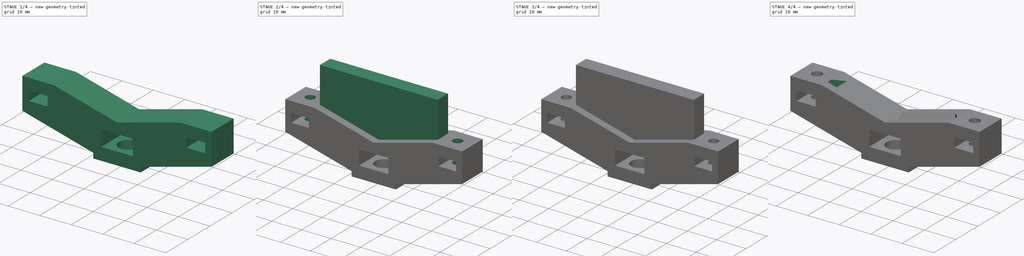
[diagram: build sequence overview — one tinted view per stage of 4, left to right]
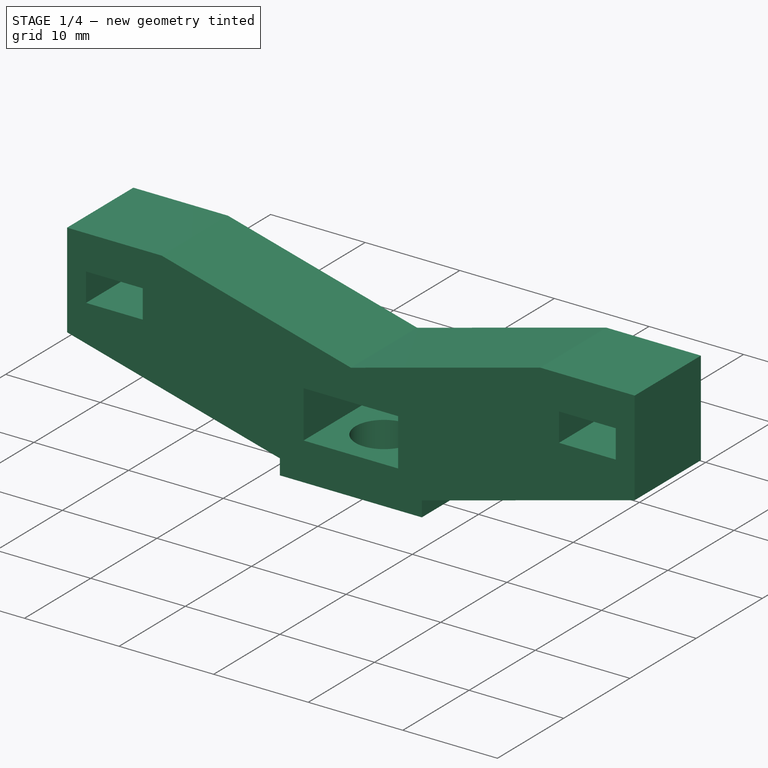
[diagram: stage 1 of 4 — iso view after this stage's code; geometry added in this stage tinted green]
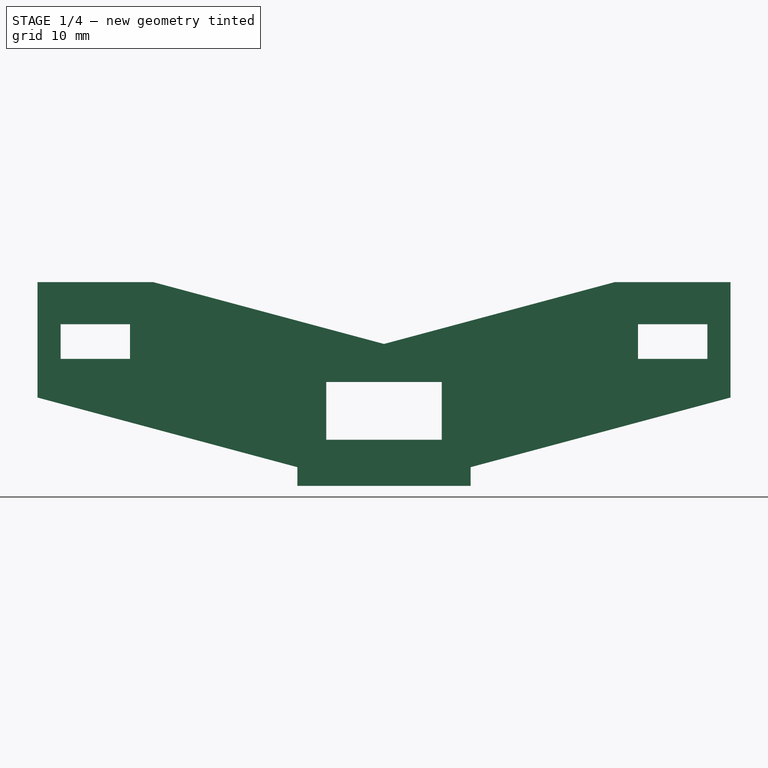
[diagram: stage 1 of 4 — front view after this stage's code; geometry added in this stage tinted green]
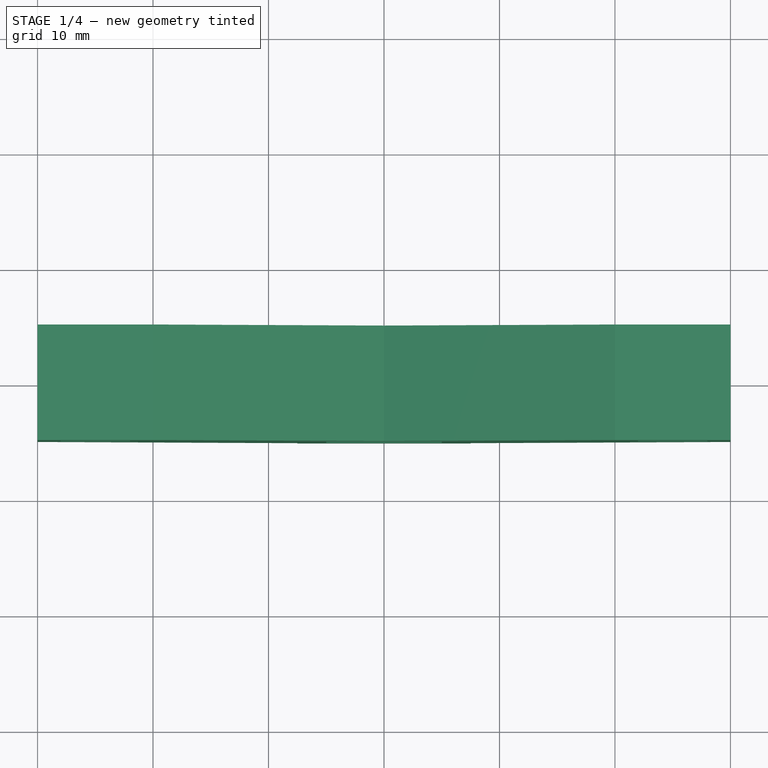
[diagram: stage 1 of 4 — top view after this stage's code; geometry added in this stage tinted green]
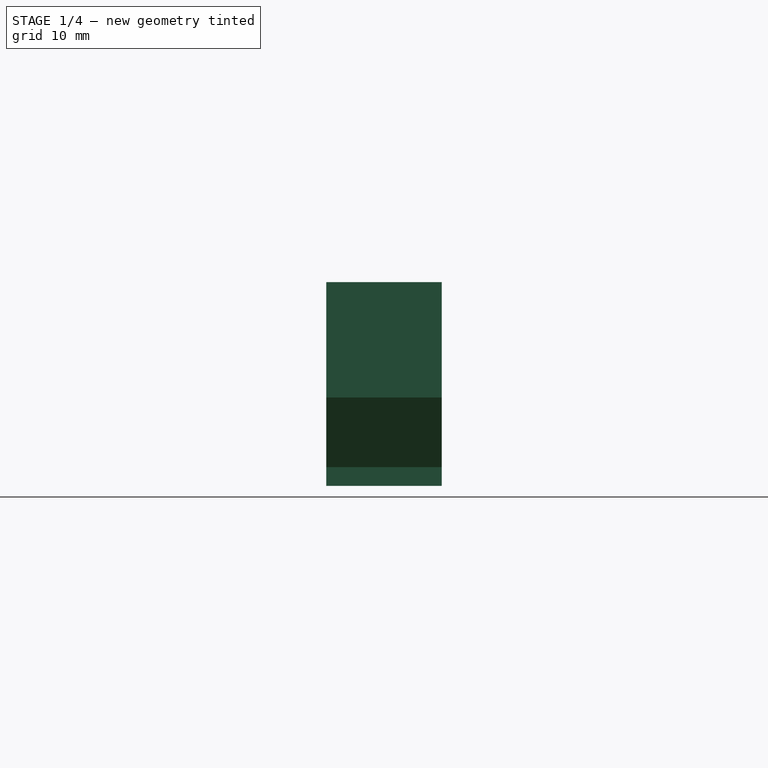
[diagram: stage 1 of 4 — right view after this stage's code; geometry added in this stage tinted green]
FCSTD DOCUMENT  (FreeCAD 0.20R29410 (Git))
Label: LensHolder
License: All rights reserved
LicenseURL: http://en.wikipedia.org/wiki/All_rights_reserved
objects: Sketcher::SketchObject×6, PartDesign::Chamfer×4, PartDesign::Pocket×4, PartDesign::Pad×2, PartDesign::Body×2, PartDesign::Boolean×1
note: 29 computed .brp shape members not serialized (recipe doc carries the construction recipe); baked Part::Feature solids carry a one-line shape summary decoded from their .brp

FEATURE [PartDesign::Body] Body001
  Group = -> [Sketch004,Pad001,Chamfer,Chamfer001,Chamfer002,Chamfer003]
  Origin = -> Origin001
  Tip = -> Chamfer003
FEATURE [PartDesign::Pad] Pad
  Direction = (0,-1,2e-16)
  Length = 10
  Length2 = 10
  Midplane = true
  Placement = pos=(0,0,0) rot=(1,0,0;1.5708rad)
  Profile = -> Sketch
  ReferenceAxis = -> Sketch [N_Axis]
  Refine = true
  Type = 0
FEATURE [PartDesign::Pocket] Pocket
  BaseFeature = -> Pad
  Direction = (0,1,2e-16)
  Length = 5
  Length2 = 5
  Midplane = true
  Placement = pos=(0,0,0) rot=(1,0,0;1.5708rad)
  Profile = -> Sketch002
  ReferenceAxis = -> Sketch002 [N_Axis]
  Refine = true
  Type = 1
FEATURE [PartDesign::Pocket] Pocket001
  BaseFeature = -> Pocket
  Direction = (0,0,-1)
  Length = 6
  Length2 = 5
  Placement = pos=(0,0,0) rot=(1,0,0;1.5708rad)
  Profile = -> Sketch003
  ReferenceAxis = -> Sketch003 [N_Axis]
  Refine = true
  Reversed = true
  Type = 0
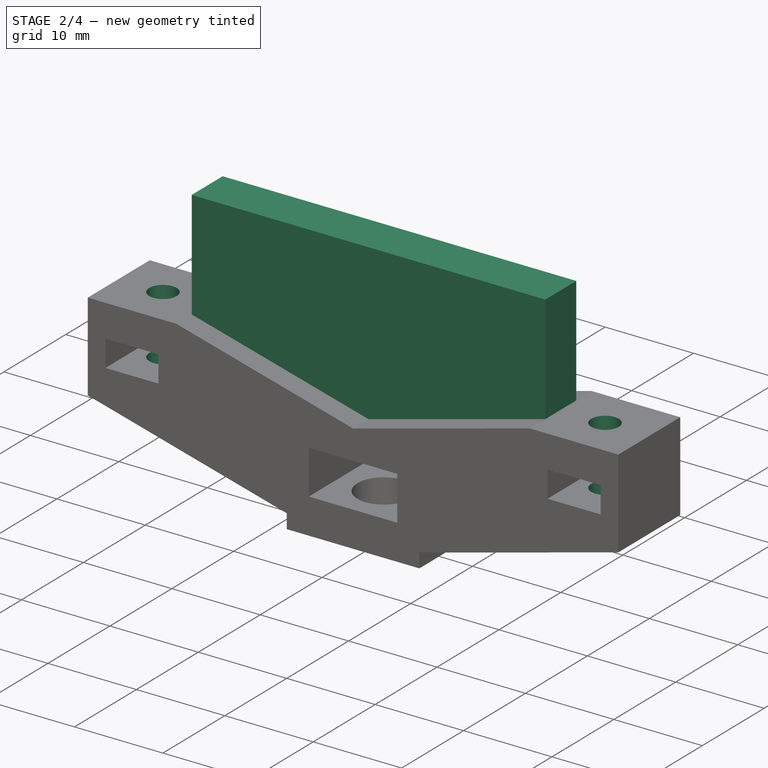
[diagram: stage 2 of 4 — iso view after this stage's code; geometry added in this stage tinted green]
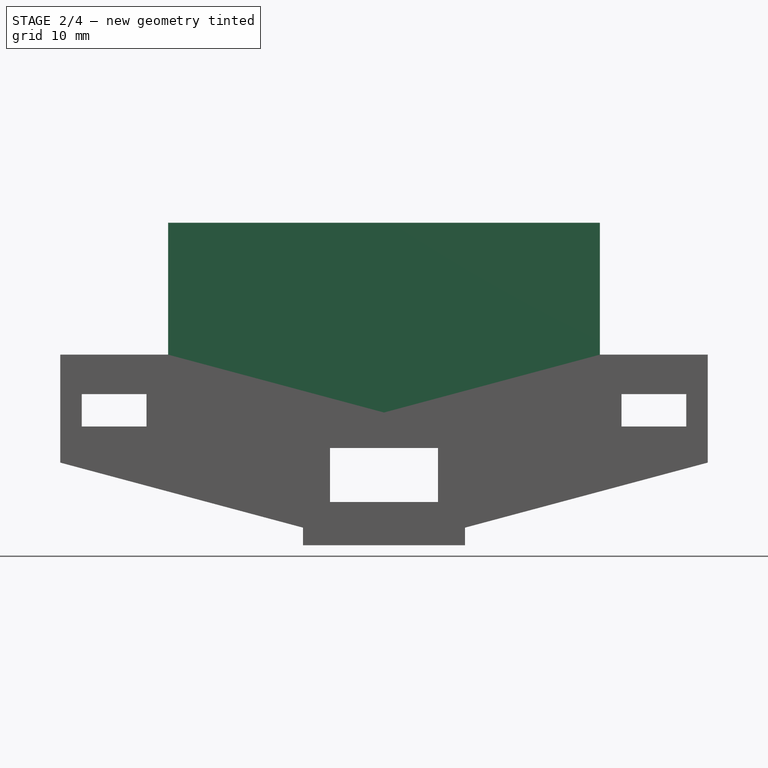
[diagram: stage 2 of 4 — front view after this stage's code; geometry added in this stage tinted green]
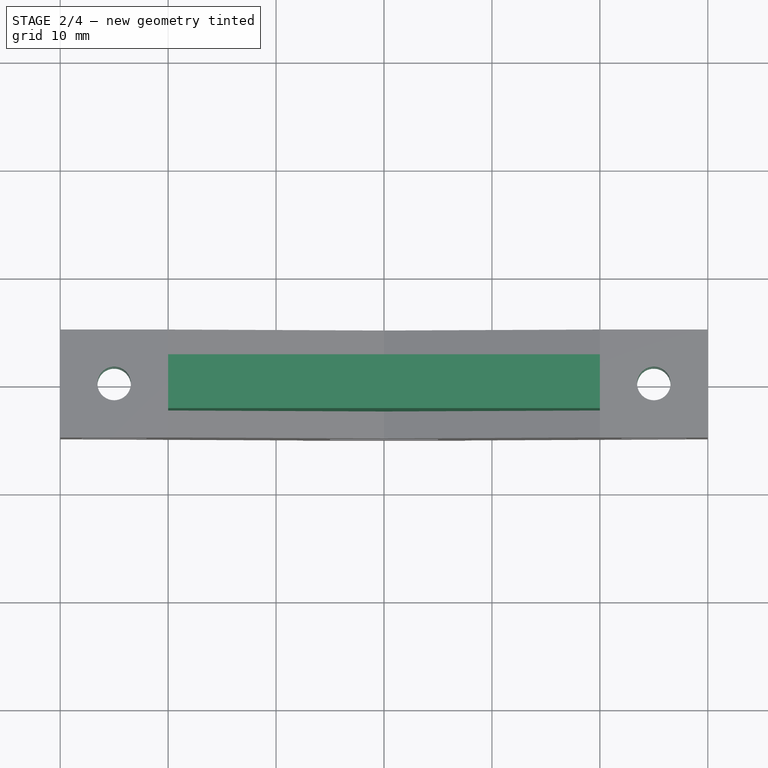
[diagram: stage 2 of 4 — top view after this stage's code; geometry added in this stage tinted green]
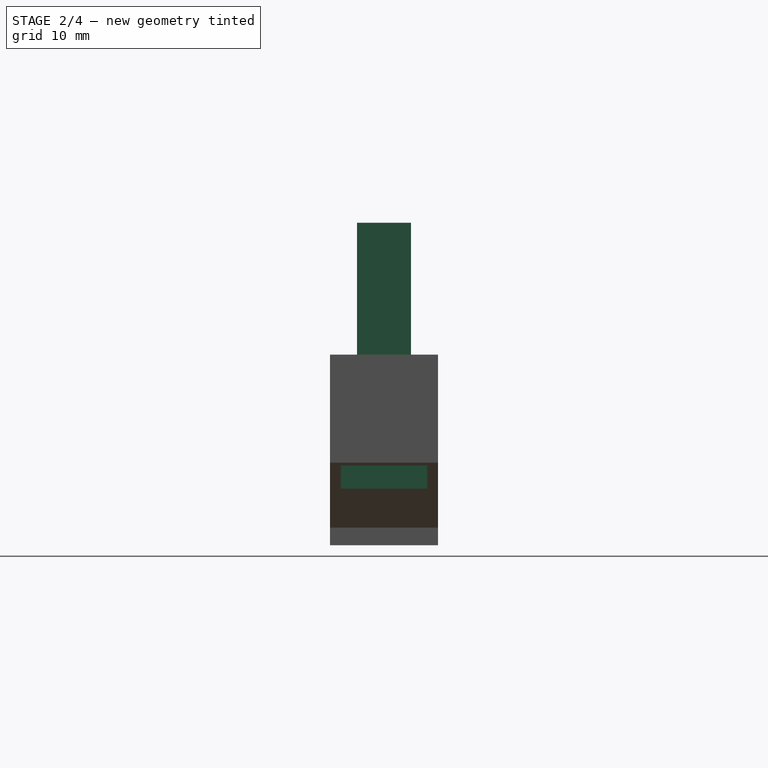
[diagram: stage 2 of 4 — right view after this stage's code; geometry added in this stage tinted green]
FEATURE [Sketcher::SketchObject] Sketch
  FullyConstrained = true
  MapMode = 5
  Placement = pos=(0,0,0) rot=(1,0,0;1.5708rad)
  sketch-geometry (13):
    g0: GeomPoint X=0 Y=33 Z=0
    g1: LineSegment StartX=-30 StartY=17.6535 StartZ=0 EndX=-20 EndY=17.6535 EndZ=0
    g2: LineSegment StartX=-20 StartY=17.6535 StartZ=0 EndX=0 EndY=12.2945 EndZ=0
    g3: LineSegment StartX=0 StartY=12.2945 StartZ=0 EndX=20 EndY=17.6535 EndZ=0
    g4: LineSegment StartX=20 StartY=17.6535 StartZ=0 EndX=30 EndY=17.6535 EndZ=0
    g5: Circle CenterX=0 CenterY=33 CenterZ=0 NormalX=0 NormalY=0 NormalZ=1 AngleXU=0 Radius=20
    g6: LineSegment StartX=-7.5 StartY=1.6246 StartZ=0 EndX=-30 EndY=7.65346 EndZ=0
    g7: LineSegment StartX=-30 StartY=7.65346 StartZ=0 EndX=-30 EndY=17.6535 EndZ=0
    g8: LineSegment StartX=7.5 StartY=1.6246 StartZ=0 EndX=30 EndY=7.65346 EndZ=0
    g9: LineSegment StartX=30 StartY=7.65346 StartZ=0 EndX=30 EndY=17.6535 EndZ=0
    g10: LineSegment StartX=7.5 StartY=1.6246 StartZ=0 EndX=7.5 EndY=0 EndZ=0
    g11: LineSegment StartX=-7.5 StartY=1.6246 StartZ=0 EndX=-7.5 EndY=0 EndZ=0
    g12: LineSegment StartX=-7.5 StartY=0 StartZ=0 EndX=7.5 EndY=0 EndZ=0
  constraints (34):
    c: PointOnObject(g0,g-2)
    c: DistanceY(g-1,g0) = 33
    c: Horizontal(g1,g4)
    c: Horizontal(g1)
    c: Coincident(g1,g2)
    c: Coincident(g2,g3)
    c: Coincident(g3,g4)
    c: Coincident(g5,g0)
    c: Diameter(g5) = 40  'Lens'
    c: PointOnObject(g2,g-2)
    c: Tangent(g3,g5)
    c: DistanceX(g1,g3) = 40
    c: Angle(g3,g2) = 2.61799
    c: Symmetric(g3,g1,g-2)
    c: Coincident(g6,g7)
    c: Coincident(g7,g1)
    c: Coincident(g8,g9)
    c: Coincident(g9,g4)
    c: Vertical(g9)
    c: Vertical(g7)
    c: Symmetric(g8,g6,g-2)
    c: Distance(g9) = 10
    c: Parallel(g3,g8)
    c: Symmetric(g8,g6,g-2)
    c: Distance(g4) = 10
    c: Coincident(g10,g8)
    c: PointOnObject(g10,g-1)
    c: Vertical(g10)
    c: Coincident(g11,g6)
    c: PointOnObject(g11,g-1)
    c: Vertical(g11)
    c: Coincident(g12,g11)
    c: Coincident(g12,g10)
    c: Distance(g12) = 15
FEATURE [Sketcher::SketchObject] Sketch003  label="SketchBottomHoles"
  FullyConstrained = true
  MapMode = 5
  Support = -> [XY_Plane]
  sketch-geometry (2):
    g0: LineSegment StartX=-3.64842e-11 StartY=0 StartZ=0 EndX=8.6236e-12 EndY=0 EndZ=0
    g1: Circle CenterX=8.6236e-12 CenterY=0 CenterZ=0 NormalX=0 NormalY=0 NormalZ=1 AngleXU=0 Radius=3
  constraints (4):
    c: Symmetric(g0,g0,g-2)
    c: Coincident(g1,g0)
    c: Diameter(g1) = 6
    c: Coincident(g1,g-1)
FEATURE [Sketcher::SketchObject] Sketch002  label="SketchNutCapture"
  FullyConstrained = true
  MapMode = 5
  Placement = pos=(0,0,0) rot=(1,0,0;1.5708rad)
  Support = -> [XZ_Plane]
  sketch-geometry (17):
    g0: LineSegment StartX=-5 StartY=9 StartZ=0 EndX=5 EndY=9 EndZ=0
    g1: LineSegment StartX=5 StartY=9 StartZ=0 EndX=5 EndY=4 EndZ=0
    g2: LineSegment StartX=5 StartY=4 StartZ=0 EndX=-5 EndY=4 EndZ=0
    g3: LineSegment StartX=-5 StartY=4 StartZ=0 EndX=-5 EndY=9 EndZ=0
    g4: LineSegment StartX=-12.5 StartY=-5.08223 StartZ=0 EndX=12.5 EndY=-5.08223 EndZ=0
    g5: LineSegment StartX=12.5 StartY=-2.61907 StartZ=0 EndX=12.5 EndY=-16.2522 EndZ=0
    g6: LineSegment StartX=-12.5 StartY=-2.55511 StartZ=0 EndX=-12.5 EndY=-17.2223 EndZ=0
    g7: LineSegment StartX=-28 StartY=14 StartZ=0 EndX=-22 EndY=14 EndZ=0
    g8: LineSegment StartX=-22 StartY=14 StartZ=0 EndX=-22 EndY=11 EndZ=0
    g9: LineSegment StartX=-22 StartY=11 StartZ=0 EndX=-28 EndY=11 EndZ=0
    g10: LineSegment StartX=-28 StartY=11 StartZ=0 EndX=-28 EndY=14 EndZ=0
    g11: LineSegment StartX=22 StartY=14 StartZ=0 EndX=28 EndY=14 EndZ=0
    g12: LineSegment StartX=28 StartY=14 StartZ=0 EndX=28 EndY=11 EndZ=0
    g13: LineSegment StartX=28 StartY=11 StartZ=0 EndX=22 EndY=11 EndZ=0
    g14: LineSegment StartX=22 StartY=11 StartZ=0 EndX=22 EndY=14 EndZ=0
    g15: LineSegment StartX=-25 StartY=-3.61053 StartZ=0 EndX=25 EndY=-3.61053 EndZ=0
    g16: LineSegment StartX=-35 StartY=-1.87304 StartZ=0 EndX=35 EndY=-1.87304 EndZ=0
  constraints (44):
    c: Coincident(g0,g1)
    c: Coincident(g2,g3)
    c: Coincident(g3,g0)
    c: Horizontal(g0)
    c: Vertical(g1)
    c: Vertical(g3)
    c: PointOnObject(g4,g6)
    c: DistanceX(g2,g2) = 10
    c: DistanceY(g1,g1) = 5
    c: Block(g6)
    c: Block(g5)
    c: Block(g4)
    c: DistanceY(g-1,g1) = 4
    c: Coincident(g7,g8)
    c: Coincident(g8,g9)
    c: Coincident(g9,g10)
    c: Coincident(g10,g7)
    c: Horizontal(g7)
    c: Horizontal(g9)
    c: Vertical(g8)
    c: Vertical(g10)
    c: Coincident(g11,g12)
    c: Coincident(g12,g13)
    c: Coincident(g13,g14)
    c: Coincident(g14,g11)
    c: Horizontal(g11)
    c: Horizontal(g13)
    c: Vertical(g12)
    c: Vertical(g14)
    c: Distance(g13) = 6
    c: Distance(g15) = 50
    c: Symmetric(g15,g15,g-2)
    c: Equal(g11,g7)
    c: Equal(g14,g8)
    c: Distance(g16) = 70
    c: Symmetric(g16,g16,g-2)
    c: Symmetric(g11,g7,g-2)
    c: Block(g16)
    c: Block(g15)
    c: Coincident(g2,g1)
    c: Symmetric(g2,g1,g-2)
    c: DistanceX(g-1,g11) = 22
    c: DistanceY(g-1,g13) = 11
    c: Distance(g11,g12) = 3
FEATURE [Sketcher::SketchObject] Sketch004
  FullyConstrained = true
  MapMode = 5
  Placement = pos=(0,0,0) rot=(1,0,0;1.5708rad)
  Support = -> [XZ_Plane001]
  sketch-geometry (5):
    g0: LineSegment StartX=-20 StartY=14.559 StartZ=0 EndX=0 EndY=9.2 EndZ=0
    g1: LineSegment StartX=0 StartY=9.2 StartZ=0 EndX=20 EndY=14.559 EndZ=0
    g2: LineSegment StartX=20 StartY=14.559 StartZ=0 EndX=20 EndY=29.869 EndZ=0
    g3: LineSegment StartX=20 StartY=29.869 StartZ=0 EndX=-20 EndY=29.869 EndZ=0
    g4: LineSegment StartX=-20 StartY=29.869 StartZ=0 EndX=-20 EndY=14.559 EndZ=0
  constraints (14):
    c: Coincident(g0,g1)
    c: Coincident(g1,g2)
    c: Vertical(g2)
    c: Coincident(g2,g3)
    c: Horizontal(g3)
    c: Coincident(g3,g4)
    c: Coincident(g4,g0)
    c: Vertical(g4)
    c: Angle(g1,g0) = 2.61799
    c: Symmetric(g1,g0,g-2)
    c: PointOnObject(g0,g-2)
    c: DistanceX(g3,g2) = 40
    c: DistanceY(g-1,g0) = 9.2
    c: DistanceY(g2,g2) = 15.31
FEATURE [PartDesign::Pad] Pad001
  Direction = (0,-1,-2e-16)
  Length = 5
  Length2 = 10
  Midplane = true
  Placement = pos=(0,0,0) rot=(1,0,0;1.5708rad)
  Profile = -> Sketch004
  ReferenceAxis = -> Sketch004 [N_Axis]
  Refine = true
  Type = 0
FEATURE [Sketcher::SketchObject] Sketch005
  FullyConstrained = true
  MapMode = 5
  Support = -> [XY_Plane]
  sketch-geometry (2):
    g0: Circle CenterX=-25 CenterY=0 CenterZ=0 NormalX=0 NormalY=0 NormalZ=1 AngleXU=0 Radius=1.55
    g1: Circle CenterX=25 CenterY=0 CenterZ=0 NormalX=0 NormalY=0 NormalZ=1 AngleXU=0 Radius=1.55
  constraints (5):
    c: PointOnObject(g0,g-1)
    c: Equal(g0,g1)
    c: Diameter(g1) = 3.1
    c: Symmetric(g1,g0,g-2)
    c: Distance(g-1,g1) = 25
FEATURE [PartDesign::Pocket] Pocket002
  BaseFeature = -> Pocket001
  Direction = (0,0,1)
  Length = 5
  Length2 = 5
  Placement = pos=(0,0,0) rot=(1,0,0;1.5708rad)
  Profile = -> Sketch005
  ReferenceAxis = -> Sketch005 [N_Axis]
  Refine = true
  Type = 1
  UseCustomVector = true
FEATURE [Sketcher::SketchObject] Sketch006
  FullyConstrained = true
  MapMode = 5
  sketch-geometry (9):
    g0: LineSegment StartX=-29 StartY=4 StartZ=0 EndX=-21 EndY=4 EndZ=0
    g1: LineSegment StartX=-21 StartY=4 StartZ=0 EndX=-21 EndY=-4 EndZ=0
    g2: LineSegment StartX=-21 StartY=-4 StartZ=0 EndX=-29 EndY=-4 EndZ=0
    g3: LineSegment StartX=-29 StartY=-4 StartZ=0 EndX=-29 EndY=4 EndZ=0
    g4: LineSegment StartX=21 StartY=4 StartZ=0 EndX=29 EndY=4 EndZ=0
    g5: LineSegment StartX=29 StartY=4 StartZ=0 EndX=29 EndY=-4 EndZ=0
    g6: LineSegment StartX=29 StartY=-4 StartZ=0 EndX=21 EndY=-4 EndZ=0
    g7: LineSegment StartX=21 StartY=-4 StartZ=0 EndX=21 EndY=4 EndZ=0
    g8: LineSegment StartX=25 StartY=21.0052 StartZ=0 EndX=25 EndY=-24.1672 EndZ=0
  constraints (24):
    c: Coincident(g0,g1)
    c: Coincident(g1,g2)
    c: Coincident(g2,g3)
    c: Coincident(g3,g0)
    c: Horizontal(g0)
    c: Horizontal(g2)
    c: Vertical(g1)
    c: Vertical(g3)
    c: Coincident(g4,g5)
    c: Coincident(g5,g6)
    c: Coincident(g6,g7)
    c: Coincident(g7,g4)
    c: Horizontal(g4)
    c: Horizontal(g6)
    c: Vertical(g7)
    c: DistanceX(g-1,g8) = 25
    c: Distance(g5) = 8
    c: Distance(g6) = 8
    c: Symmetric(g4,g4,g8)
    c: Symmetric(g4,g5,g-1)
    c: Equal(g6,g2)
    c: Equal(g1,g5)
    c: Symmetric(g6,g1,g-2)
    c: Block(g8)
FEATURE [PartDesign::Pocket] Pocket003
  BaseFeature = -> Pocket002
  Direction = (0,0,1)
  Length = 7.4
  Length2 = 5
  Placement = pos=(0,0,0) rot=(1,0,0;1.5708rad)
  Profile = -> Sketch006
  ReferenceAxis = -> Sketch006 [N_Axis]
  Refine = true
  Type = 0
  UseCustomVector = true
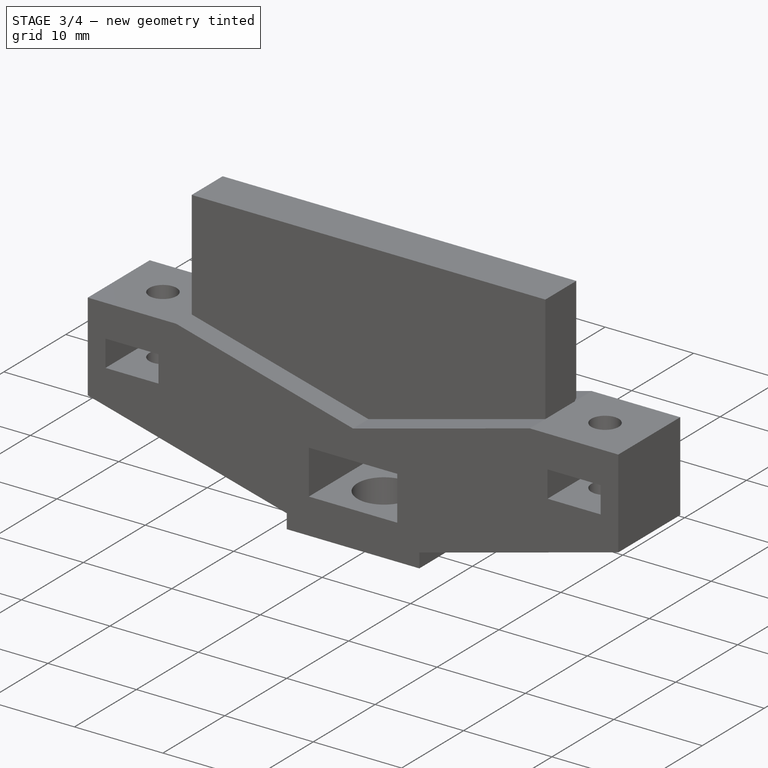
[diagram: stage 3 of 4 — iso view after this stage's code; geometry added in this stage tinted green]
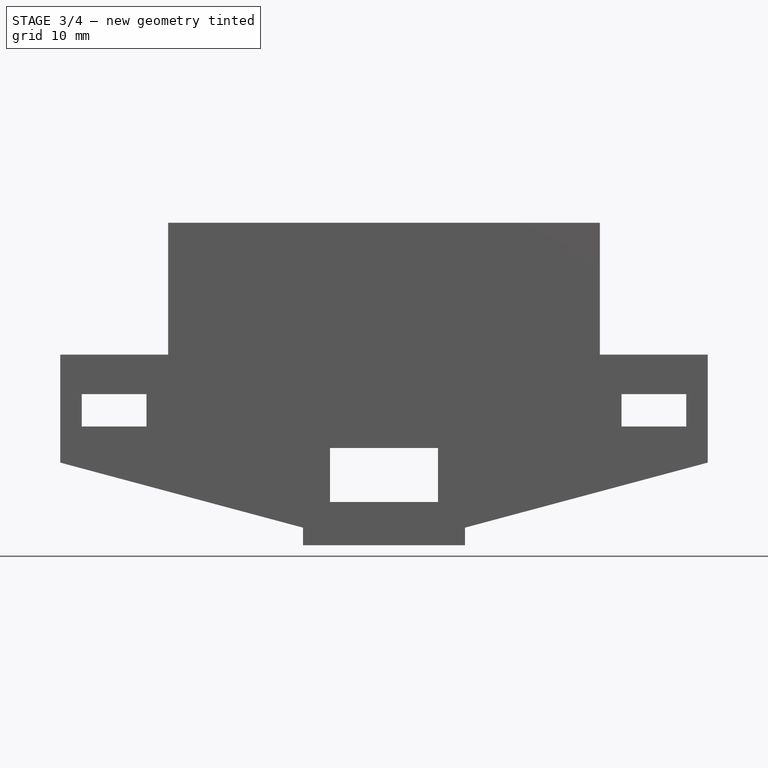
[diagram: stage 3 of 4 — front view after this stage's code; geometry added in this stage tinted green]
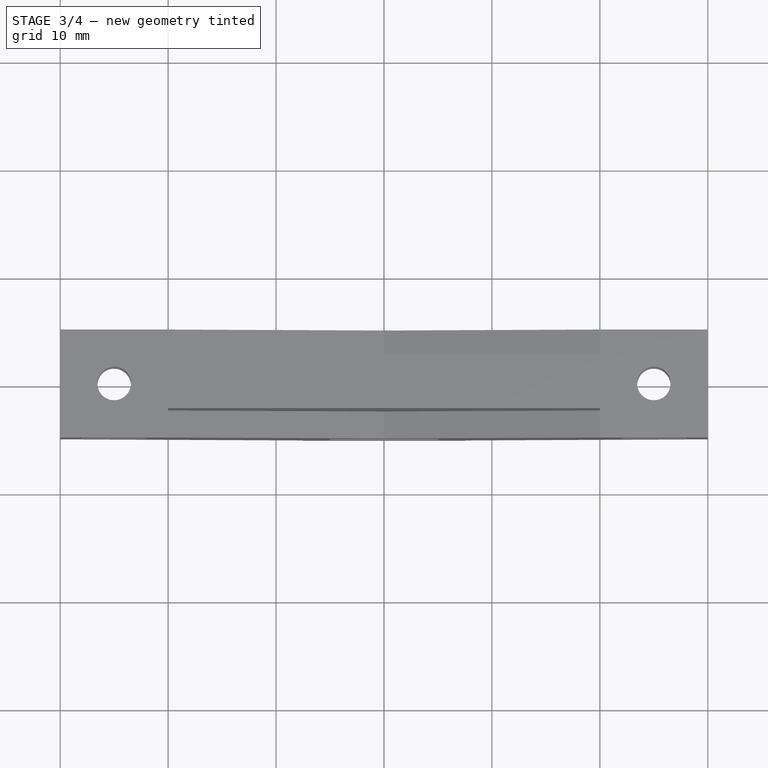
[diagram: stage 3 of 4 — top view after this stage's code; geometry added in this stage tinted green]
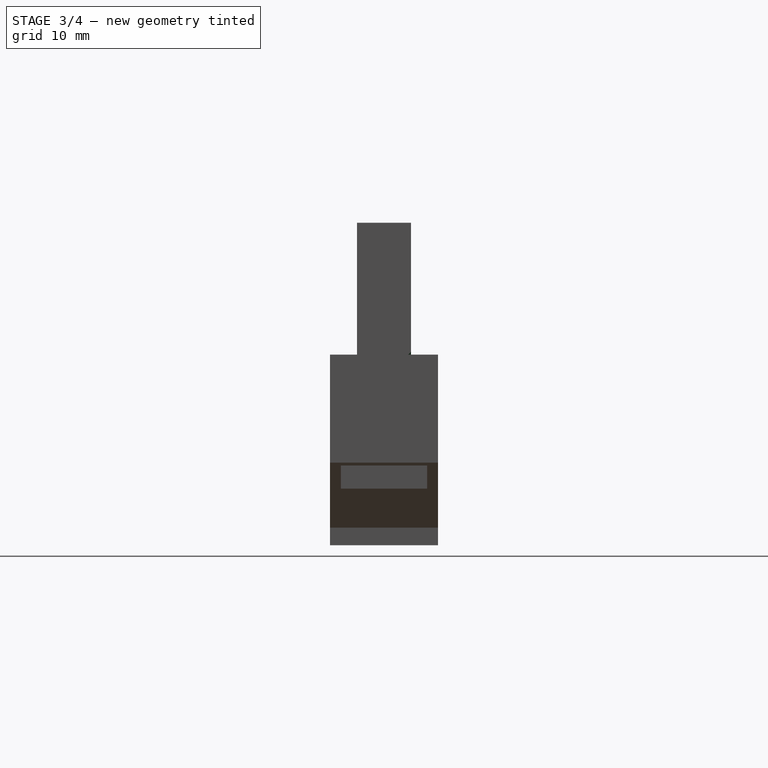
[diagram: stage 3 of 4 — right view after this stage's code; geometry added in this stage tinted green]
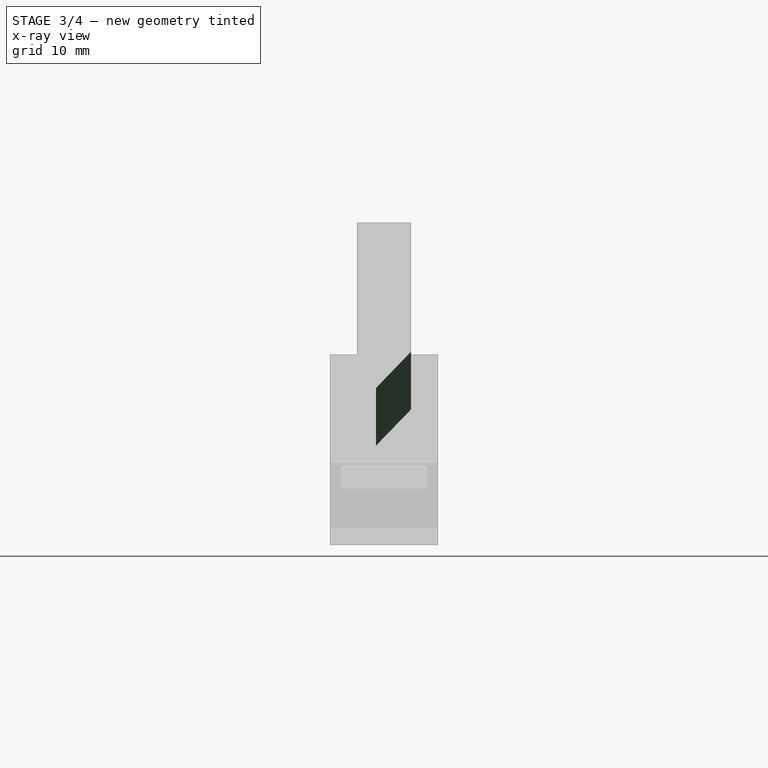
[diagram: stage 3 of 4 — x-ray composite at the right view; earlier geometry ghosted, this stage's added geometry solid]
FEATURE [PartDesign::Chamfer] Chamfer
  Angle = 45
  Base = -> Pad001 [Edge6]
  BaseFeature = -> Pad001
  ChamferType = 0
  FlipDirection = false
  Placement = pos=(0,0,0) rot=(1,0,0;1.5708rad)
  Refine = true
  Size = 3.25
  Size2 = 1
  SupportTransform = false
  UseAllEdges = false
FEATURE [PartDesign::Chamfer] Chamfer001
  Angle = 45
  Base = -> Chamfer [Edge4]
  BaseFeature = -> Chamfer
  ChamferType = 0
  FlipDirection = false
  Placement = pos=(0,0,0) rot=(1,0,0;1.5708rad)
  Refine = true
  Size = 3.25
  Size2 = 1
  SupportTransform = false
  UseAllEdges = false
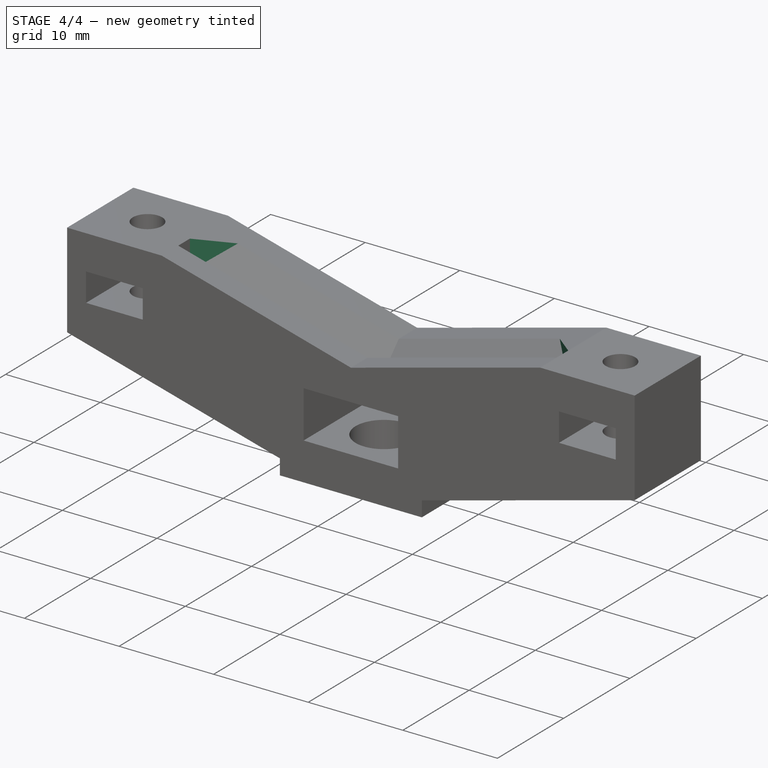
[diagram: stage 4 of 4 — iso view after this stage's code; geometry added in this stage tinted green]
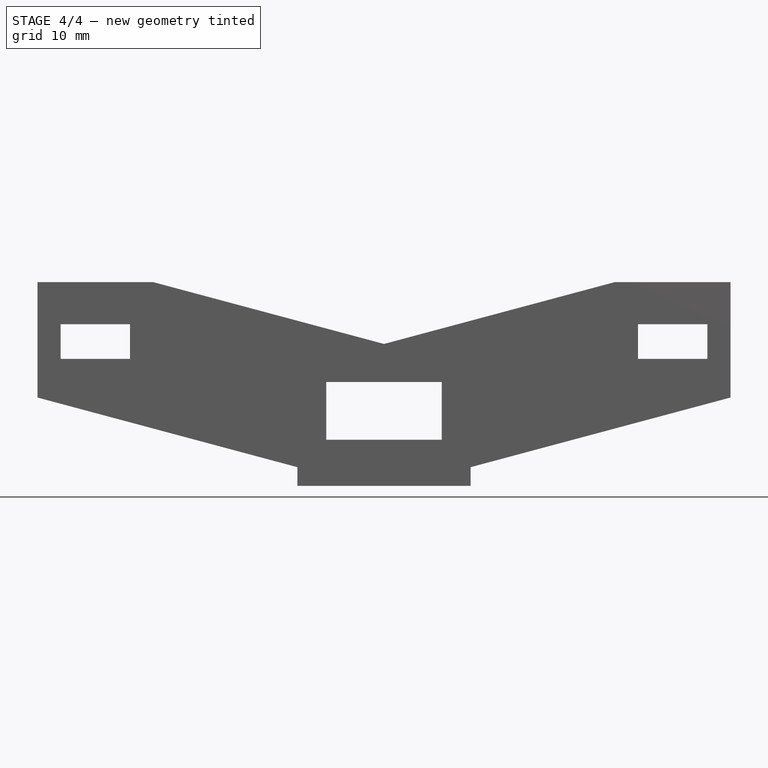
[diagram: stage 4 of 4 — front view after this stage's code; geometry added in this stage tinted green]
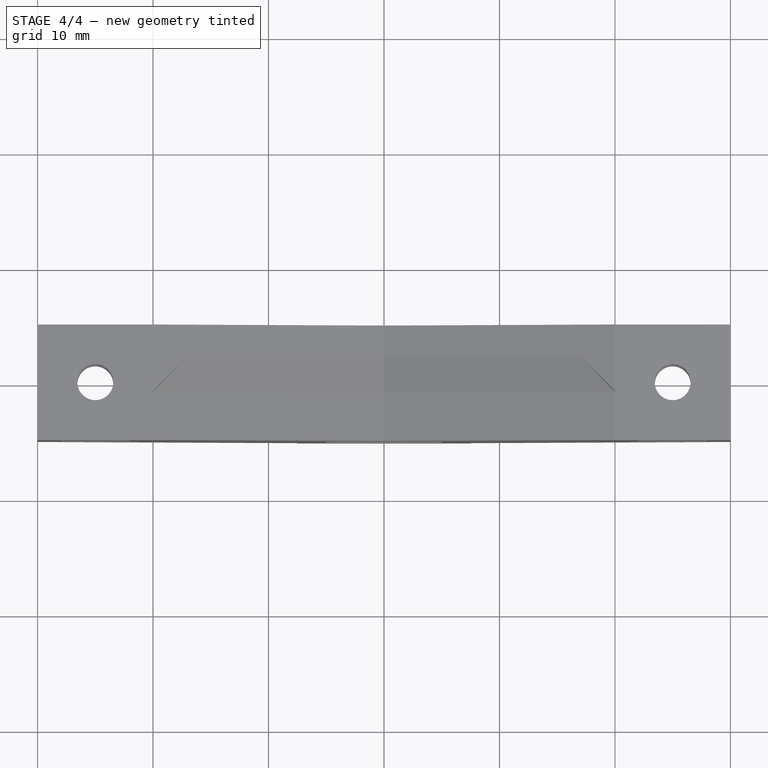
[diagram: stage 4 of 4 — top view after this stage's code; geometry added in this stage tinted green]
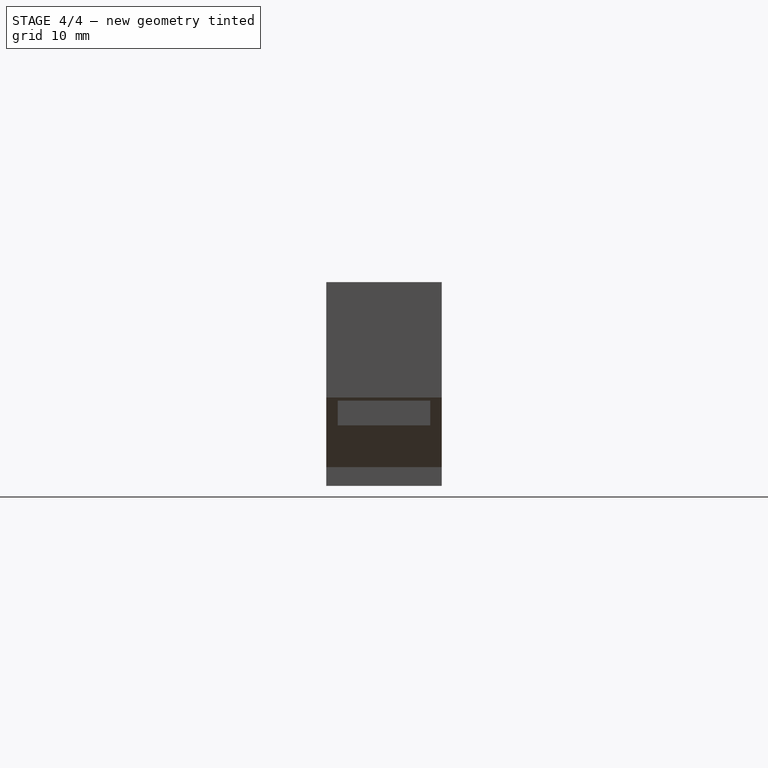
[diagram: stage 4 of 4 — right view after this stage's code; geometry added in this stage tinted green]
FEATURE [PartDesign::Chamfer] Chamfer002
  Angle = 45
  Base = -> Chamfer001 [Edge7]
  BaseFeature = -> Chamfer001
  ChamferType = 0
  FlipDirection = false
  Placement = pos=(0,0,0) rot=(1,0,0;1.5708rad)
  Refine = true
  Size = 3.25
  Size2 = 1
  SupportTransform = false
  UseAllEdges = false
FEATURE [PartDesign::Chamfer] Chamfer003
  Angle = 45
  Base = -> Chamfer002 [Edge18]
  BaseFeature = -> Chamfer002
  ChamferType = 0
  FlipDirection = false
  Placement = pos=(0,0,0) rot=(1,0,0;1.5708rad)
  Refine = true
  Size = 3.25
  Size2 = 1
  SupportTransform = false
  UseAllEdges = false
FEATURE [PartDesign::Boolean] Boolean
  BaseFeature = -> Pocket003
  Group = -> [Body001]
  Refine = true
  Type = 1
FEATURE [PartDesign::Body] Body
  Group = -> [Sketch,Sketch002,Sketch003,Pad,Pocket,Pocket001,Sketch005,Pocket002,Sketch006,Pocket003,Boolean]
  Origin = -> Origin
  Tip = -> Boolean
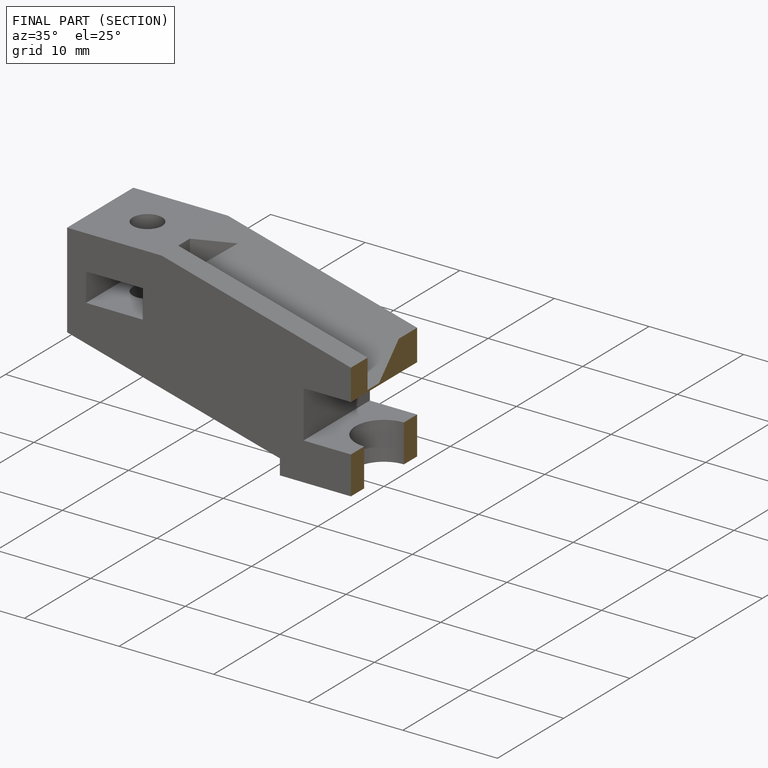
[diagram: finished part — half-section view (interior)]
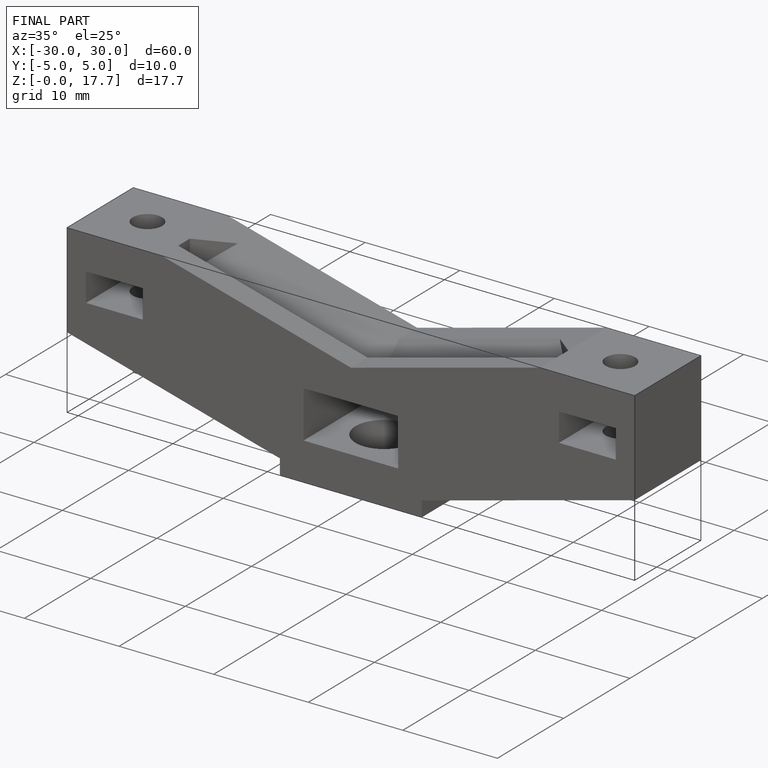
[diagram: finished part — iso view with bounding-box wireframe]
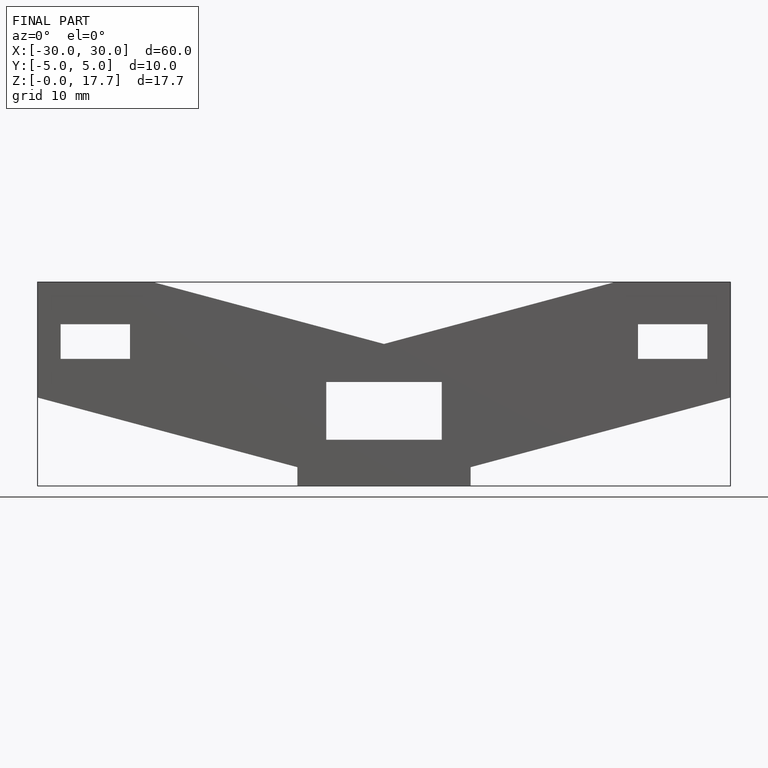
[diagram: finished part — front view with bounding-box wireframe]
